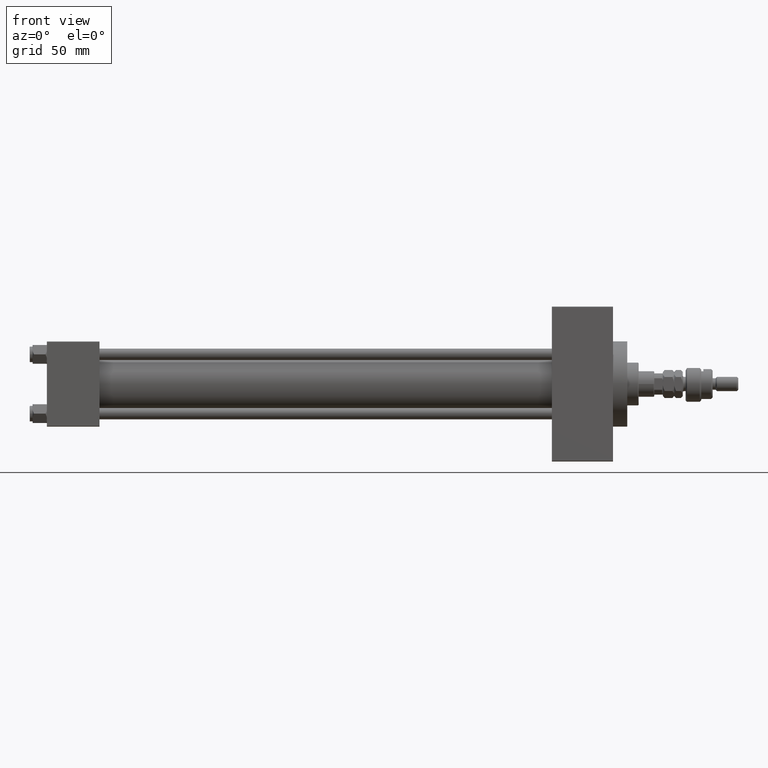
[diagram: clean part render]
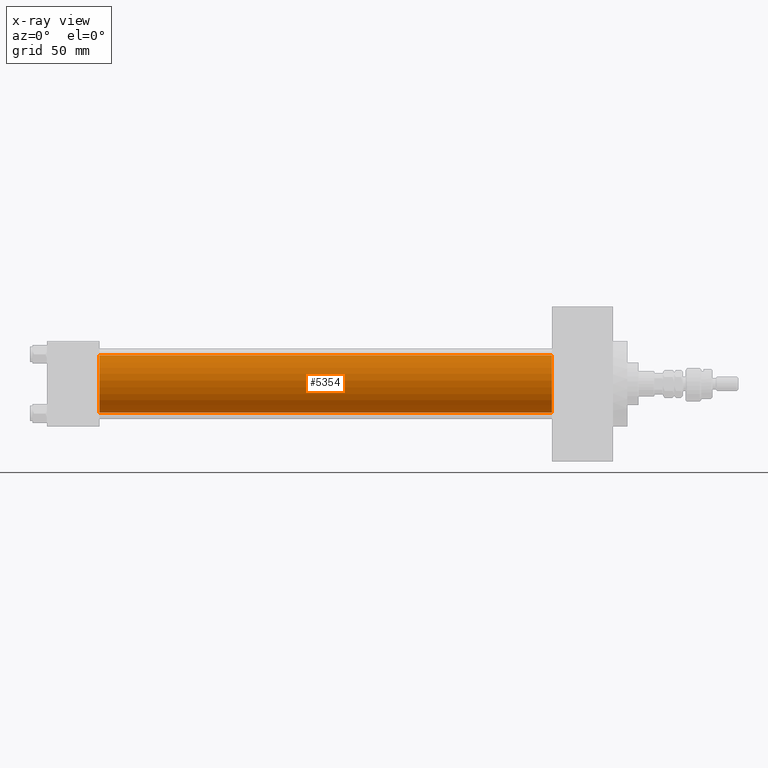
[diagram: x-ray — body ghosted, one internal face saturated and labeled with its STEP entity id]
A machine part, front view, then the same camera in x-ray: the body is ghosted and one INTERNAL B-rep face — a face not visible from any outside direction — is saturated and labeled: STEP entity #5354.
In plain terms, the highlighted cylindrical surface (edge-blend (fillet) strip) has radius 20 mm, axis along (-1, -0, -0).
Its self-contained STEP definition (entity closure, byte-faithful):
#918 = EDGE_CURVE ( 'NONE', #21375, #39116, #23483, .T. ) ;
#2718 = AXIS2_PLACEMENT_3D ( 'NONE', #31656, #48515, #35882 ) ;
#3482 = VERTEX_POINT ( 'NONE', #19127 ) ;
#3834 = DIRECTION ( 'NONE',  ( 0.000000000000000000, 0.000000000000000000, 1.000000000000000000 ) ) ;
#4331 = CARTESIAN_POINT ( 'NONE',  ( 37.00000000000000000, -2.602085213965210642E-15, 20.00000000000000000 ) ) ;
#5354 = ADVANCED_FACE ( 'NONE', ( #27563 ), #43886, .F. ) ;
#7219 = VECTOR ( 'NONE', #22712, 1000.000000000000000 ) ;
#7868 = EDGE_LOOP ( 'NONE', ( #31221, #46312, #24096, #29130 ) ) ;
#9280 = DIRECTION ( 'NONE',  ( -1.000000000000000000, -0.000000000000000000, -0.000000000000000000 ) ) ;
#9493 = DIRECTION ( 'NONE',  ( 0.000000000000000000, 0.000000000000000000, -1.000000000000000000 ) ) ;
#17392 = CARTESIAN_POINT ( 'NONE',  ( 355.0000000000000000, -2.602085213965210642E-15, 0.000000000000000000 ) ) ;
#19127 = CARTESIAN_POINT ( 'NONE',  ( 37.00000000000000000, -1.527916156705046464E-16, -20.00000000000000000 ) ) ;
#21375 = VERTEX_POINT ( 'NONE', #50507 ) ;
#22712 = DIRECTION ( 'NONE',  ( -1.000000000000000000, -0.000000000000000000, -0.000000000000000000 ) ) ;
#22839 = CARTESIAN_POINT ( 'NONE',  ( 355.0000000000000000, -1.527916156705046464E-16, -20.00000000000000000 ) ) ;
#23219 = CARTESIAN_POINT ( 'NONE',  ( 355.0000000000000000, -2.602085213965210642E-15, 20.00000000000000000 ) ) ;
#23483 = LINE ( 'NONE', #23219, #7219 ) ;
#23881 = DIRECTION ( 'NONE',  ( -1.000000000000000000, -0.000000000000000000, -0.000000000000000000 ) ) ;
#24096 = ORIENTED_EDGE ( 'NONE', *, *, #24998, .F. ) ;
#24998 = EDGE_CURVE ( 'NONE', #39116, #3482, #28769, .T. ) ;
#27563 = FACE_OUTER_BOUND ( 'NONE', #7868, .T. ) ;
#28769 = CIRCLE ( 'NONE', #2718, 20.00000000000000000 ) ;
#29130 = ORIENTED_EDGE ( 'NONE', *, *, #918, .F. ) ;
#31221 = ORIENTED_EDGE ( 'NONE', *, *, #43802, .T. ) ;
#31656 = CARTESIAN_POINT ( 'NONE',  ( 37.00000000000000000, -2.602085213965210642E-15, 0.000000000000000000 ) ) ;
#31811 = VERTEX_POINT ( 'NONE', #22839 ) ;
#35882 = DIRECTION ( 'NONE',  ( 0.000000000000000000, 0.000000000000000000, -1.000000000000000000 ) ) ;
#36506 = CIRCLE ( 'NONE', #37370, 20.00000000000000000 ) ;
#37172 = DIRECTION ( 'NONE',  ( 1.000000000000000000, 0.000000000000000000, 0.000000000000000000 ) ) ;
#37370 = AXIS2_PLACEMENT_3D ( 'NONE', #17392, #37172, #9493 ) ;
#39116 = VERTEX_POINT ( 'NONE', #4331 ) ;
#40382 = CARTESIAN_POINT ( 'NONE',  ( 355.0000000000000000, -1.527916156705046464E-16, -20.00000000000000000 ) ) ;
#41156 = LINE ( 'NONE', #40382, #41679 ) ;
#41679 = VECTOR ( 'NONE', #9280, 1000.000000000000000 ) ;
#43633 = CARTESIAN_POINT ( 'NONE',  ( 355.0000000000000000, -2.602085213965210642E-15, 0.000000000000000000 ) ) ;
#43802 = EDGE_CURVE ( 'NONE', #21375, #31811, #36506, .T. ) ;
#43886 = CYLINDRICAL_SURFACE ( 'NONE', #47802, 20.00000000000000000 ) ;
#46090 = EDGE_CURVE ( 'NONE', #31811, #3482, #41156, .T. ) ;
#46312 = ORIENTED_EDGE ( 'NONE', *, *, #46090, .T. ) ;
#47802 = AXIS2_PLACEMENT_3D ( 'NONE', #43633, #23881, #3834 ) ;
#48515 = DIRECTION ( 'NONE',  ( 1.000000000000000000, 0.000000000000000000, 0.000000000000000000 ) ) ;
#50507 = CARTESIAN_POINT ( 'NONE',  ( 355.0000000000000000, -2.602085213965210642E-15, 20.00000000000000000 ) ) ;